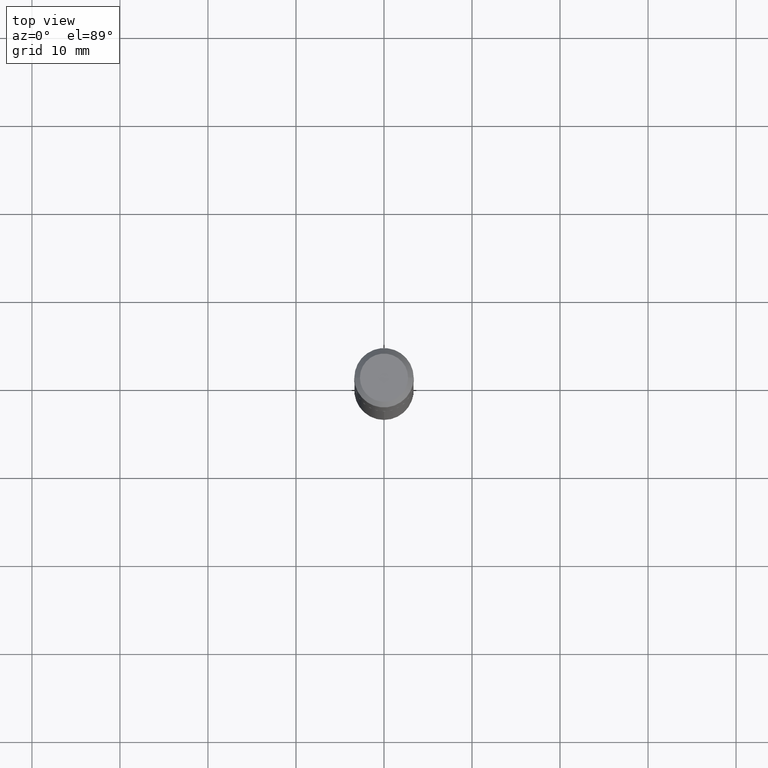
[diagram: clean part render]
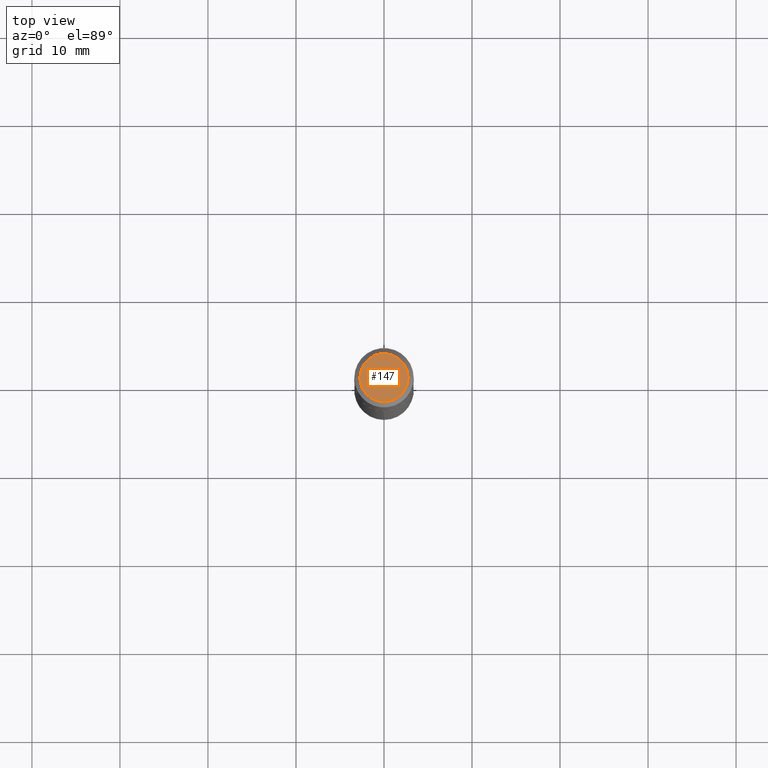
[diagram: same view with one face highlighted and labeled with its STEP entity id]
A machine part, top view. The second image highlights one B-rep face of the part: STEP entity #147.
In plain terms, the highlighted planar face has unit normal (0, -0, -1).
Its self-contained STEP definition (entity closure, byte-faithful):
#5 = CIRCLE ( 'NONE', #295, 0.1077999999999999931 ) ;
#8 = DIRECTION ( 'NONE',  ( 1.000000000000000000, -6.982962677686265922E-15, 4.876159313494118266E-29 ) ) ;
#9 = DIRECTION ( 'NONE',  ( -2.445468806185136597E-29, 3.491481338843145583E-15, 1.000000000000000000 ) ) ;
#44 = ORIENTED_EDGE ( 'NONE', *, *, #54, .T. ) ;
#51 = DIRECTION ( 'NONE',  ( -2.445468806185136597E-29, 3.491481338843145583E-15, 1.000000000000000000 ) ) ;
#54 = EDGE_CURVE ( 'NONE', #60, #141, #5, .T. ) ;
#58 = DIRECTION ( 'NONE',  ( -1.000000000000000000, 6.982962677686265922E-15, -4.876176775795935793E-29 ) ) ;
#60 = VERTEX_POINT ( 'NONE', #132 ) ;
#91 = CARTESIAN_POINT ( 'NONE',  ( -8.819790682702965946E-47, 1.259232360816658556E-32, 3.606584823488954451E-18 ) ) ;
#114 = CARTESIAN_POINT ( 'NONE',  ( -0.1077999999999999931, 7.964068933901182285E-16, 7.213169646972493186E-18 ) ) ;
#132 = CARTESIAN_POINT ( 'NONE',  ( 0.1077999999999999931, -8.689614258674547851E-16, 7.213169646983578839E-18 ) ) ;
#141 = VERTEX_POINT ( 'NONE', #114 ) ;
#147 = ADVANCED_FACE ( 'NONE', ( #416 ), #350, .F. ) ;
#160 = DIRECTION ( 'NONE',  ( 1.000000000000000000, -6.982962677686265922E-15, 4.876159313494118266E-29 ) ) ;
#181 = AXIS2_PLACEMENT_3D ( 'NONE', #391, #9, #160 ) ;
#194 = CIRCLE ( 'NONE', #181, 0.1077999999999999931 ) ;
#226 = DIRECTION ( 'NONE',  ( 2.438088387897960049E-29, -3.491481338843145188E-15, -1.000000000000000000 ) ) ;
#295 = AXIS2_PLACEMENT_3D ( 'NONE', #341, #51, #8 ) ;
#299 = EDGE_CURVE ( 'NONE', #141, #60, #194, .T. ) ;
#317 = EDGE_LOOP ( 'NONE', ( #322, #44 ) ) ;
#322 = ORIENTED_EDGE ( 'NONE', *, *, #299, .T. ) ;
#341 = CARTESIAN_POINT ( 'NONE',  ( -1.763958136540593189E-46, 2.518464721633317113E-32, 7.213169646977908901E-18 ) ) ;
#350 = PLANE ( 'NONE',  #355 ) ;
#355 = AXIS2_PLACEMENT_3D ( 'NONE', #91, #226, #58 ) ;
#391 = CARTESIAN_POINT ( 'NONE',  ( -1.763958136540593189E-46, 2.518464721633317113E-32, 7.213169646977908901E-18 ) ) ;
#416 = FACE_OUTER_BOUND ( 'NONE', #317, .T. ) ;